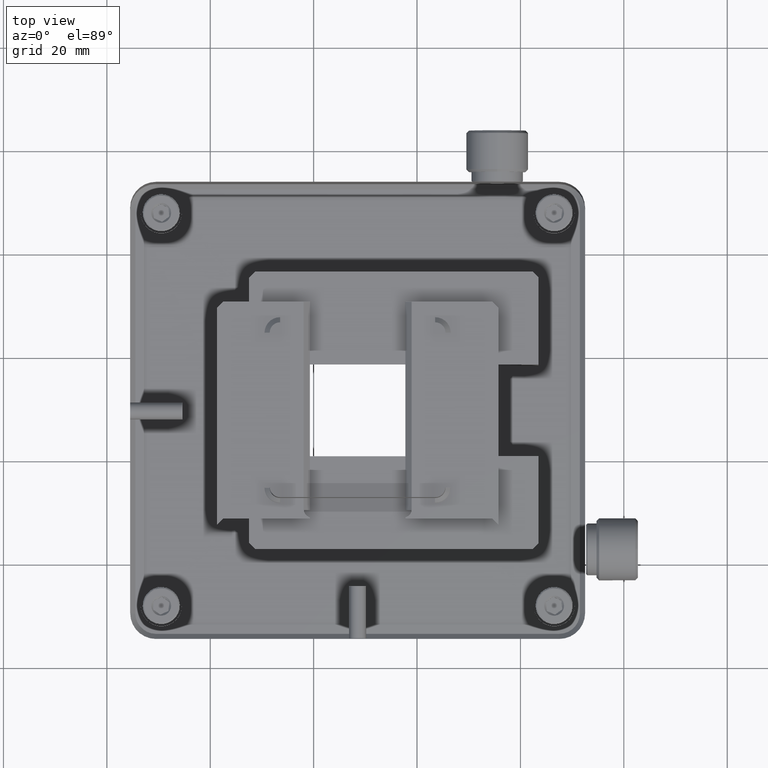
[diagram: clean part render]
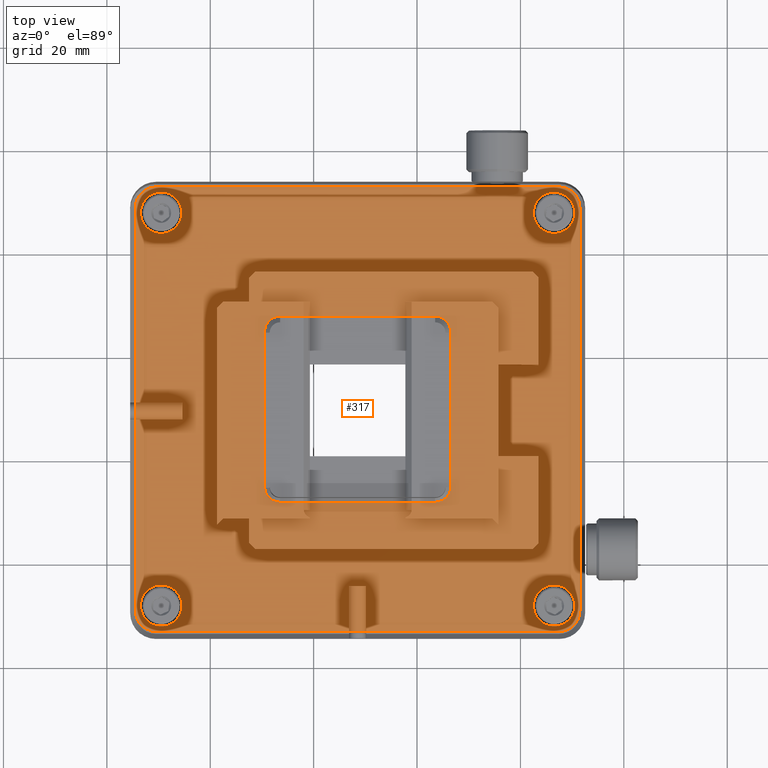
[diagram: same view with one face highlighted and labeled with its STEP entity id]
A machine part, top view. The second image highlights one B-rep face of the part: STEP entity #317.
In plain terms, the highlighted planar face has unit normal (0, 0, -1).
Its self-contained STEP definition (entity closure, byte-faithful):
#46 = CARTESIAN_POINT ( 'NONE',  ( 126.5087469373111730, 67.68000000000000682, 22.17399999999999949 ) ) ;
#47 = ORIENTED_EDGE ( 'NONE', *, *, #4197, .T. ) ;
#62 = CARTESIAN_POINT ( 'NONE',  ( 106.5087469373111873, 29.68000000000000327, 22.17399999999999949 ) ) ;
#66 = VERTEX_POINT ( 'NONE', #1225 ) ;
#292 = DIRECTION ( 'NONE',  ( 0.000000000000000000, -0.000000000000000000, 1.000000000000000000 ) ) ;
#317 = ADVANCED_FACE ( 'NONE', ( #1839, #2914, #2340, #4586, #6723, #4507 ), #1909, .T. ) ;
#330 = DIRECTION ( 'NONE',  ( 1.000000000000000000, 0.000000000000000000, 0.000000000000000000 ) ) ;
#383 = DIRECTION ( 'NONE',  ( 1.000000000000000000, 0.000000000000000000, 0.000000000000000000 ) ) ;
#442 = CARTESIAN_POINT ( 'NONE',  ( 54.50874693731118725, 67.68000000000000682, 22.17399999999999949 ) ) ;
#478 = VECTOR ( 'NONE', #5162, 1000.000000000000000 ) ;
#482 = ORIENTED_EDGE ( 'NONE', *, *, #4315, .T. ) ;
#559 = VERTEX_POINT ( 'NONE', #4760 ) ;
#570 = VERTEX_POINT ( 'NONE', #6399 ) ;
#612 = VERTEX_POINT ( 'NONE', #2530 ) ;
#657 = ORIENTED_EDGE ( 'NONE', *, *, #1014, .T. ) ;
#679 = ORIENTED_EDGE ( 'NONE', *, *, #2456, .T. ) ;
#687 = CARTESIAN_POINT ( 'NONE',  ( 50.50874693731119436, 67.68000000000000682, 22.17399999999999949 ) ) ;
#746 = ORIENTED_EDGE ( 'NONE', *, *, #3025, .T. ) ;
#762 = VERTEX_POINT ( 'NONE', #3227 ) ;
#810 = AXIS2_PLACEMENT_3D ( 'NONE', #6268, #4023, #6229 ) ;
#899 = VERTEX_POINT ( 'NONE', #4176 ) ;
#976 = AXIS2_PLACEMENT_3D ( 'NONE', #4718, #2512, #6353 ) ;
#1014 = EDGE_CURVE ( 'NONE', #570, #762, #6470, .T. ) ;
#1067 = VERTEX_POINT ( 'NONE', #2036 ) ;
#1095 = DIRECTION ( 'NONE',  ( 0.000000000000000000, 1.000000000000000000, 0.000000000000000000 ) ) ;
#1137 = CIRCLE ( 'NONE', #6487, 3.999999999999996447 ) ;
#1225 = CARTESIAN_POINT ( 'NONE',  ( 103.5087469373111873, 11.68000000000928829, 22.17399999999070204 ) ) ;
#1256 = LINE ( 'NONE', #1900, #6036 ) ;
#1300 = DIRECTION ( 'NONE',  ( -1.000000000000000000, 0.000000000000000000, 0.000000000000000000 ) ) ;
#1329 = CARTESIAN_POINT ( 'NONE',  ( 50.50874693731119436, -8.319999999999996732, 22.17399999999999949 ) ) ;
#1401 = ORIENTED_EDGE ( 'NONE', *, *, #7032, .T. ) ;
#1402 = LINE ( 'NONE', #5218, #2333 ) ;
#1413 = LINE ( 'NONE', #6362, #478 ) ;
#1441 = DIRECTION ( 'NONE',  ( 1.000000000000000000, -0.000000000000000000, 0.000000000000000000 ) ) ;
#1474 = VECTOR ( 'NONE', #4776, 1000.000000000000000 ) ;
#1482 = EDGE_CURVE ( 'NONE', #3345, #2419, #1683, .T. ) ;
#1561 = DIRECTION ( 'NONE',  ( -1.000000000000000000, 0.000000000000000000, 0.000000000000000000 ) ) ;
#1614 = CARTESIAN_POINT ( 'NONE',  ( 49.50874693731116594, 72.68000000002247418, 22.17399999997751081 ) ) ;
#1683 = CIRCLE ( 'NONE', #1917, 2.999999999985902832 ) ;
#1729 = LINE ( 'NONE', #62, #4111 ) ;
#1731 = CARTESIAN_POINT ( 'NONE',  ( 103.5087469373111873, 44.67999999999999261, 22.17399999998140459 ) ) ;
#1797 = CARTESIAN_POINT ( 'NONE',  ( 88.50874693731118725, 29.68000000000000327, 22.17399999999999949 ) ) ;
#1839 = FACE_OUTER_BOUND ( 'NONE', #4516, .T. ) ;
#1842 = EDGE_CURVE ( 'NONE', #66, #3606, #6588, .T. ) ;
#1850 = EDGE_CURVE ( 'NONE', #3290, #3290, #4658, .T. ) ;
#1863 = DIRECTION ( 'NONE',  ( 0.000000000000000000, 0.000000000000000000, 1.000000000000000000 ) ) ;
#1874 = EDGE_LOOP ( 'NONE', ( #3255 ) ) ;
#1900 = CARTESIAN_POINT ( 'NONE',  ( 131.5087469373111730, 29.68000000000000327, 22.17399999999999949 ) ) ;
#1909 = PLANE ( 'NONE',  #2944 ) ;
#1917 = AXIS2_PLACEMENT_3D ( 'NONE', #1731, #3914, #5021 ) ;
#1971 = DIRECTION ( 'NONE',  ( -0.000000000000000000, -1.000000000000000000, -0.000000000000000000 ) ) ;
#1998 = CIRCLE ( 'NONE', #976, 2.999999999985902832 ) ;
#2036 = CARTESIAN_POINT ( 'NONE',  ( 127.5087469373111446, 72.68000000006419725, 22.17399999997773108 ) ) ;
#2053 = CIRCLE ( 'NONE', #810, 4.000000000132786226 ) ;
#2054 = DIRECTION ( 'NONE',  ( 0.000000000000000000, 1.000000000000000000, 0.000000000000000000 ) ) ;
#2092 = CARTESIAN_POINT ( 'NONE',  ( 103.5087469373111873, 14.67999999999999083, 22.17399999998140459 ) ) ;
#2137 = ORIENTED_EDGE ( 'NONE', *, *, #6419, .T. ) ;
#2195 = VERTEX_POINT ( 'NONE', #1614 ) ;
#2333 = VECTOR ( 'NONE', #1971, 1000.000000000000000 ) ;
#2340 = FACE_BOUND ( 'NONE', #3532, .T. ) ;
#2350 = ORIENTED_EDGE ( 'NONE', *, *, #5034, .T. ) ;
#2378 = DIRECTION ( 'NONE',  ( 0.000000000000000000, 0.000000000000000000, -1.000000000000000000 ) ) ;
#2380 = EDGE_CURVE ( 'NONE', #899, #4779, #6371, .T. ) ;
#2419 = VERTEX_POINT ( 'NONE', #5381 ) ;
#2452 = CIRCLE ( 'NONE', #6311, 3.999999999999996447 ) ;
#2456 = EDGE_CURVE ( 'NONE', #2419, #570, #4880, .T. ) ;
#2512 = DIRECTION ( 'NONE',  ( 0.000000000000000000, -0.000000000000000000, 1.000000000000000000 ) ) ;
#2530 = CARTESIAN_POINT ( 'NONE',  ( 49.50874693731118015, -13.32000000000536666, 22.17399999996500171 ) ) ;
#2536 = CARTESIAN_POINT ( 'NONE',  ( 88.50874693731118725, 72.67999999999999261, 22.17399999999999949 ) ) ;
#2552 = ORIENTED_EDGE ( 'NONE', *, *, #2380, .T. ) ;
#2722 = ORIENTED_EDGE ( 'NONE', *, *, #3589, .T. ) ;
#2747 = ORIENTED_EDGE ( 'NONE', *, *, #4103, .T. ) ;
#2760 = VERTEX_POINT ( 'NONE', #7002 ) ;
#2851 = EDGE_CURVE ( 'NONE', #2760, #2760, #3647, .T. ) ;
#2863 = DIRECTION ( 'NONE',  ( 1.000000000000000000, 0.000000000000000000, 0.000000000000000000 ) ) ;
#2914 = FACE_BOUND ( 'NONE', #7054, .T. ) ;
#2944 = AXIS2_PLACEMENT_3D ( 'NONE', #1797, #2378, #3369 ) ;
#2977 = DIRECTION ( 'NONE',  ( -1.000000000000000000, 0.000000000000000000, 0.000000000000000000 ) ) ;
#3025 = EDGE_CURVE ( 'NONE', #6502, #6502, #1137, .T. ) ;
#3097 = DIRECTION ( 'NONE',  ( 0.000000000000000000, 0.000000000000000000, 1.000000000000000000 ) ) ;
#3132 = CARTESIAN_POINT ( 'NONE',  ( 88.50874693731118725, 47.67999999999999261, 22.17399999999999949 ) ) ;
#3197 = DIRECTION ( 'NONE',  ( 1.000000000000000000, 0.000000000000000000, 0.000000000000000000 ) ) ;
#3224 = VECTOR ( 'NONE', #6418, 1000.000000000000000 ) ;
#3227 = CARTESIAN_POINT ( 'NONE',  ( 70.50874693730568765, 44.67999999999998550, 22.17400000000547422 ) ) ;
#3250 = DIRECTION ( 'NONE',  ( 1.000000000000000000, 0.000000000000000000, 0.000000000000000000 ) ) ;
#3254 = CARTESIAN_POINT ( 'NONE',  ( 130.5087469373111730, -8.319999999999984297, 22.17399999999999949 ) ) ;
#3255 = ORIENTED_EDGE ( 'NONE', *, *, #4897, .T. ) ;
#3290 = VERTEX_POINT ( 'NONE', #3254 ) ;
#3306 = VERTEX_POINT ( 'NONE', #4034 ) ;
#3345 = VERTEX_POINT ( 'NONE', #4566 ) ;
#3369 = DIRECTION ( 'NONE',  ( -1.000000000000000000, 0.000000000000000000, -0.000000000000000000 ) ) ;
#3390 = DIRECTION ( 'NONE',  ( 0.000000000000000000, 0.000000000000000000, 1.000000000000000000 ) ) ;
#3414 = AXIS2_PLACEMENT_3D ( 'NONE', #6823, #4504, #1300 ) ;
#3532 = EDGE_LOOP ( 'NONE', ( #3772 ) ) ;
#3546 = VECTOR ( 'NONE', #2054, 1000.000000000000000 ) ;
#3589 = EDGE_CURVE ( 'NONE', #612, #3306, #5360, .T. ) ;
#3606 = VERTEX_POINT ( 'NONE', #4286 ) ;
#3647 = CIRCLE ( 'NONE', #5703, 4.000000000000003553 ) ;
#3716 = EDGE_CURVE ( 'NONE', #4932, #899, #1256, .T. ) ;
#3760 = AXIS2_PLACEMENT_3D ( 'NONE', #3969, #6141, #2977 ) ;
#3770 = EDGE_CURVE ( 'NONE', #5913, #2195, #6952, .T. ) ;
#3772 = ORIENTED_EDGE ( 'NONE', *, *, #1850, .T. ) ;
#3811 = CARTESIAN_POINT ( 'NONE',  ( 127.5087469373111730, -9.319999999999984297, 22.17399999998048798 ) ) ;
#3826 = EDGE_LOOP ( 'NONE', ( #746 ) ) ;
#3914 = DIRECTION ( 'NONE',  ( 0.000000000000000000, 0.000000000000000000, 1.000000000000000000 ) ) ;
#3969 = CARTESIAN_POINT ( 'NONE',  ( 49.50874693731118015, 68.67999999999999261, 22.17399999995502213 ) ) ;
#3972 = AXIS2_PLACEMENT_3D ( 'NONE', #4294, #3097, #3197 ) ;
#4023 = DIRECTION ( 'NONE',  ( 0.000000000000000000, 0.000000000000000000, -1.000000000000000000 ) ) ;
#4034 = CARTESIAN_POINT ( 'NONE',  ( 45.50874693728869858, -9.320000000000023377, 22.17399999997751792 ) ) ;
#4101 = AXIS2_PLACEMENT_3D ( 'NONE', #3811, #5882, #1561 ) ;
#4103 = EDGE_CURVE ( 'NONE', #3606, #3345, #1729, .T. ) ;
#4111 = VECTOR ( 'NONE', #1095, 1000.000000000000000 ) ;
#4176 = CARTESIAN_POINT ( 'NONE',  ( 131.5087469372923010, -9.319999999999986073, 22.17400000000890969 ) ) ;
#4181 = LINE ( 'NONE', #6429, #6039 ) ;
#4197 = EDGE_CURVE ( 'NONE', #1067, #4932, #2053, .T. ) ;
#4198 = ORIENTED_EDGE ( 'NONE', *, *, #1842, .T. ) ;
#4261 = DIRECTION ( 'NONE',  ( 0.000000000000000000, 0.000000000000000000, 1.000000000000000000 ) ) ;
#4286 = CARTESIAN_POINT ( 'NONE',  ( 106.5087469373018934, 14.67999999999999083, 22.17399999999070204 ) ) ;
#4294 = CARTESIAN_POINT ( 'NONE',  ( 126.5087469373111730, -8.319999999999984297, 22.17399999999999949 ) ) ;
#4314 = CARTESIAN_POINT ( 'NONE',  ( 73.50874693731117304, 11.67999999999451610, 22.17400000000547422 ) ) ;
#4315 = EDGE_CURVE ( 'NONE', #3306, #5913, #5907, .T. ) ;
#4504 = DIRECTION ( 'NONE',  ( 0.000000000000000000, 0.000000000000000000, -1.000000000000000000 ) ) ;
#4507 = FACE_BOUND ( 'NONE', #1874, .T. ) ;
#4516 = EDGE_LOOP ( 'NONE', ( #2722, #482, #6907, #2137, #47, #4934, #2552, #1401 ) ) ;
#4528 = ORIENTED_EDGE ( 'NONE', *, *, #4536, .T. ) ;
#4536 = EDGE_CURVE ( 'NONE', #6148, #66, #4181, .T. ) ;
#4566 = CARTESIAN_POINT ( 'NONE',  ( 106.5087469373069666, 44.67999999999999261, 22.17399999999240023 ) ) ;
#4586 = FACE_BOUND ( 'NONE', #6512, .T. ) ;
#4658 = CIRCLE ( 'NONE', #3972, 4.000000000000003553 ) ;
#4718 = CARTESIAN_POINT ( 'NONE',  ( 73.50874693731117304, 14.67999999999999083, 22.17400000001094895 ) ) ;
#4760 = CARTESIAN_POINT ( 'NONE',  ( 70.50874693731822163, 14.67999999999999083, 22.17400000001094895 ) ) ;
#4776 = DIRECTION ( 'NONE',  ( -1.000000000000000000, 0.000000000000000000, -0.000000000000000000 ) ) ;
#4779 = VERTEX_POINT ( 'NONE', #6672 ) ;
#4817 = LINE ( 'NONE', #2536, #3224 ) ;
#4854 = ORIENTED_EDGE ( 'NONE', *, *, #2851, .T. ) ;
#4880 = LINE ( 'NONE', #3132, #1474 ) ;
#4897 = EDGE_CURVE ( 'NONE', #4906, #4906, #2452, .T. ) ;
#4906 = VERTEX_POINT ( 'NONE', #6967 ) ;
#4932 = VERTEX_POINT ( 'NONE', #5760 ) ;
#4934 = ORIENTED_EDGE ( 'NONE', *, *, #3716, .T. ) ;
#5021 = DIRECTION ( 'NONE',  ( 1.000000000000000000, 0.000000000000000000, 0.000000000000000000 ) ) ;
#5034 = EDGE_CURVE ( 'NONE', #762, #559, #1402, .T. ) ;
#5116 = DIRECTION ( 'NONE',  ( -0.000000000000000000, -1.000000000000000000, -0.000000000000000000 ) ) ;
#5150 = DIRECTION ( 'NONE',  ( 0.000000000000000000, 0.000000000000000000, 1.000000000000000000 ) ) ;
#5162 = DIRECTION ( 'NONE',  ( -1.000000000000000000, 0.000000000000000000, -0.000000000000000000 ) ) ;
#5215 = CARTESIAN_POINT ( 'NONE',  ( 73.50874693731117304, 44.67999999999998550, 22.17400000001094895 ) ) ;
#5218 = CARTESIAN_POINT ( 'NONE',  ( 70.50874693731117304, 29.68000000000000327, 22.17399999999999949 ) ) ;
#5360 = CIRCLE ( 'NONE', #3414, 4.000000000019099389 ) ;
#5381 = CARTESIAN_POINT ( 'NONE',  ( 103.5087469373111873, 47.67999999999069161, 22.17399999999070204 ) ) ;
#5553 = AXIS2_PLACEMENT_3D ( 'NONE', #5215, #292, #330 ) ;
#5690 = CARTESIAN_POINT ( 'NONE',  ( 45.50874693728869858, 68.68000000000000682, 22.17399999997751081 ) ) ;
#5703 = AXIS2_PLACEMENT_3D ( 'NONE', #46, #3390, #3250 ) ;
#5760 = CARTESIAN_POINT ( 'NONE',  ( 131.5087469373493718, 68.68000000000000682, 22.17399999996182203 ) ) ;
#5882 = DIRECTION ( 'NONE',  ( 0.000000000000000000, 0.000000000000000000, -1.000000000000000000 ) ) ;
#5907 = LINE ( 'NONE', #6333, #3546 ) ;
#5913 = VERTEX_POINT ( 'NONE', #5690 ) ;
#6036 = VECTOR ( 'NONE', #5116, 1000.000000000000000 ) ;
#6039 = VECTOR ( 'NONE', #1441, 1000.000000000000000 ) ;
#6095 = EDGE_CURVE ( 'NONE', #559, #6148, #1998, .T. ) ;
#6141 = DIRECTION ( 'NONE',  ( 0.000000000000000000, 0.000000000000000000, -1.000000000000000000 ) ) ;
#6148 = VERTEX_POINT ( 'NONE', #4314 ) ;
#6229 = DIRECTION ( 'NONE',  ( -1.000000000000000000, 0.000000000000000000, 0.000000000000000000 ) ) ;
#6241 = ORIENTED_EDGE ( 'NONE', *, *, #6095, .T. ) ;
#6268 = CARTESIAN_POINT ( 'NONE',  ( 127.5087469373111730, 68.68000000000000682, 22.17399999992364457 ) ) ;
#6311 = AXIS2_PLACEMENT_3D ( 'NONE', #1329, #1863, #6390 ) ;
#6333 = CARTESIAN_POINT ( 'NONE',  ( 45.50874693731118725, 29.68000000000000327, 22.17399999999999949 ) ) ;
#6353 = DIRECTION ( 'NONE',  ( 1.000000000000000000, 0.000000000000000000, 0.000000000000000000 ) ) ;
#6362 = CARTESIAN_POINT ( 'NONE',  ( 88.50874693731118725, -13.31999999999997719, 22.17399999999999949 ) ) ;
#6371 = CIRCLE ( 'NONE', #4101, 4.000000000075942808 ) ;
#6390 = DIRECTION ( 'NONE',  ( 1.000000000000000000, 0.000000000000000000, 0.000000000000000000 ) ) ;
#6399 = CARTESIAN_POINT ( 'NONE',  ( 73.50874693731117304, 47.67999999996800398, 22.17400000002138327 ) ) ;
#6418 = DIRECTION ( 'NONE',  ( 1.000000000000000000, -0.000000000000000000, 0.000000000000000000 ) ) ;
#6419 = EDGE_CURVE ( 'NONE', #2195, #1067, #4817, .T. ) ;
#6429 = CARTESIAN_POINT ( 'NONE',  ( 88.50874693731118725, 11.67999999999998906, 22.17399999999999949 ) ) ;
#6470 = CIRCLE ( 'NONE', #5553, 2.999999999985902832 ) ;
#6487 = AXIS2_PLACEMENT_3D ( 'NONE', #687, #5150, #2863 ) ;
#6502 = VERTEX_POINT ( 'NONE', #442 ) ;
#6512 = EDGE_LOOP ( 'NONE', ( #4854 ) ) ;
#6588 = CIRCLE ( 'NONE', #6705, 2.999999999985902832 ) ;
#6672 = CARTESIAN_POINT ( 'NONE',  ( 127.5087469373111730, -13.32000000000974538, 22.17399999999024729 ) ) ;
#6705 = AXIS2_PLACEMENT_3D ( 'NONE', #2092, #4261, #383 ) ;
#6723 = FACE_BOUND ( 'NONE', #3826, .T. ) ;
#6779 = ORIENTED_EDGE ( 'NONE', *, *, #1482, .T. ) ;
#6823 = CARTESIAN_POINT ( 'NONE',  ( 49.50874693731118725, -9.320000000000005613, 22.17399999995502924 ) ) ;
#6907 = ORIENTED_EDGE ( 'NONE', *, *, #3770, .T. ) ;
#6952 = CIRCLE ( 'NONE', #3760, 4.000000000019099389 ) ;
#6967 = CARTESIAN_POINT ( 'NONE',  ( 54.50874693731118725, -8.319999999999996732, 22.17399999999999949 ) ) ;
#7002 = CARTESIAN_POINT ( 'NONE',  ( 130.5087469373111730, 67.68000000000000682, 22.17399999999999949 ) ) ;
#7032 = EDGE_CURVE ( 'NONE', #4779, #612, #1413, .T. ) ;
#7054 = EDGE_LOOP ( 'NONE', ( #6241, #4528, #4198, #2747, #6779, #679, #657, #2350 ) ) ;